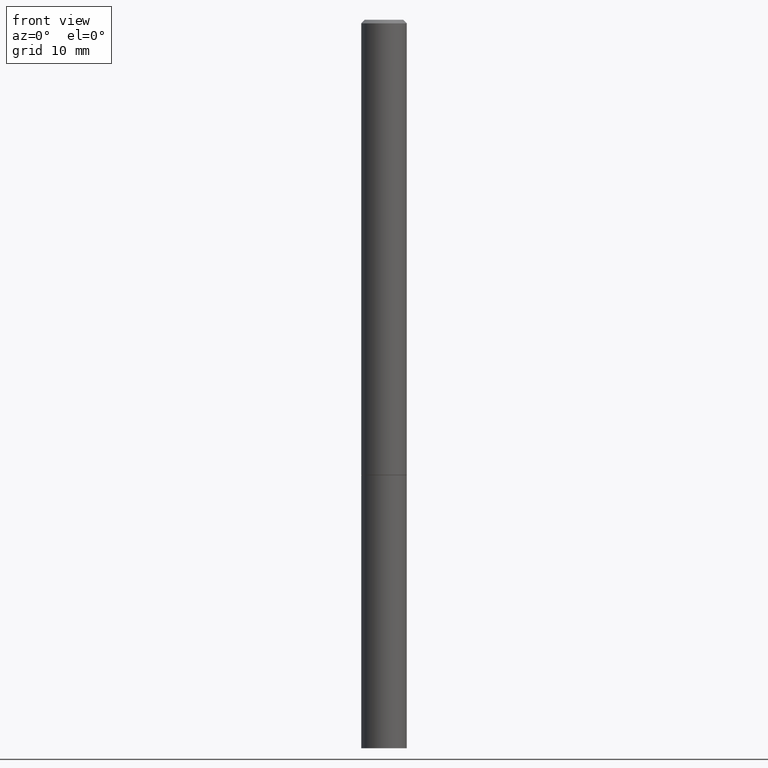
[diagram: clean part render]
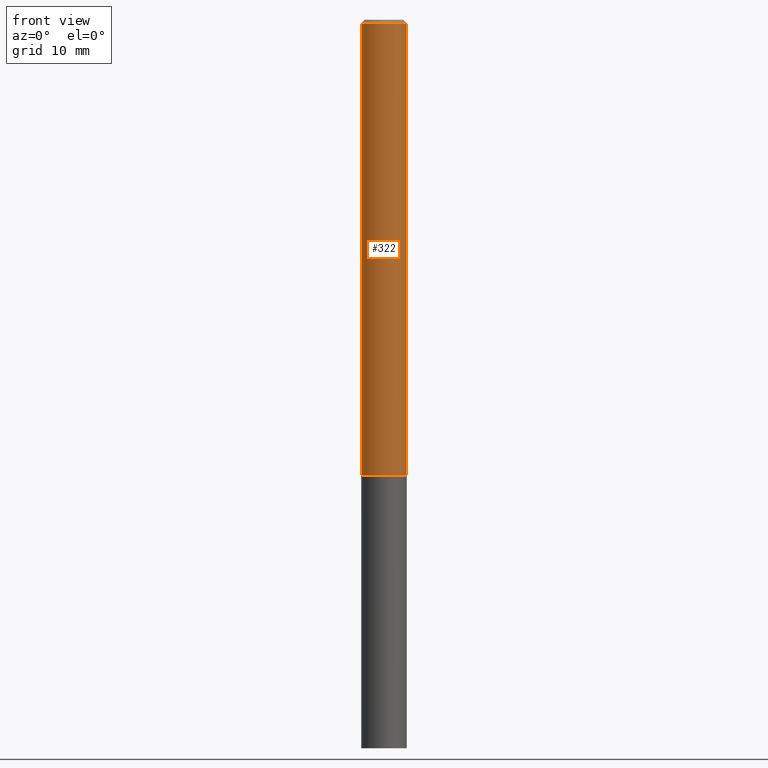
[diagram: same view with one face highlighted and labeled with its STEP entity id]
A machine part, front view. The second image highlights one B-rep face of the part: STEP entity #322.
In plain terms, the highlighted cylindrical surface (edge-blend (fillet) strip) has radius 3.175 mm, axis along (-0, 0, 1).
Its self-contained STEP definition (entity closure, byte-faithful):
#9 = VERTEX_POINT ( 'NONE', #143 ) ;
#25 = DIRECTION ( 'NONE',  ( 1.000000000000000000, -6.982962677686270655E-15, 0.000000000000000000 ) ) ;
#43 = AXIS2_PLACEMENT_3D ( 'NONE', #284, #163, #282 ) ;
#45 = VERTEX_POINT ( 'NONE', #240 ) ;
#49 = EDGE_LOOP ( 'NONE', ( #98, #335, #341, #299 ) ) ;
#54 = DIRECTION ( 'NONE',  ( -2.445468806185136877E-29, 3.491481338843145188E-15, 1.000000000000000000 ) ) ;
#59 = AXIS2_PLACEMENT_3D ( 'NONE', #301, #280, #262 ) ;
#60 = EDGE_CURVE ( 'NONE', #199, #9, #338, .T. ) ;
#70 = CARTESIAN_POINT ( 'NONE',  ( -0.1249999999999997086, 8.030407079339183643E-16, -0.02000000000000000736 ) ) ;
#87 = DIRECTION ( 'NONE',  ( -2.445468806185136597E-29, 3.491481338843145583E-15, 1.000000000000000000 ) ) ;
#94 = CARTESIAN_POINT ( 'NONE',  ( 0.1249999999999998612, -8.728703347107823527E-16, 6.095220969744912735E-30 ) ) ;
#98 = ORIENTED_EDGE ( 'NONE', *, *, #218, .F. ) ;
#122 = VECTOR ( 'NONE', #311, 39.37007874015748143 ) ;
#131 = EDGE_CURVE ( 'NONE', #9, #45, #332, .T. ) ;
#143 = CARTESIAN_POINT ( 'NONE',  ( 0.1250000000000000000, -9.598082200479808430E-15, -2.499000000000000998 ) ) ;
#163 = DIRECTION ( 'NONE',  ( -2.445468806185136597E-29, 3.491481338843145583E-15, 1.000000000000000000 ) ) ;
#166 = VECTOR ( 'NONE', #54, 39.37007874015748143 ) ;
#172 = EDGE_CURVE ( 'NONE', #378, #45, #360, .T. ) ;
#184 = FACE_OUTER_BOUND ( 'NONE', #49, .T. ) ;
#199 = VERTEX_POINT ( 'NONE', #257 ) ;
#211 = AXIS2_PLACEMENT_3D ( 'NONE', #271, #87, #25 ) ;
#214 = CARTESIAN_POINT ( 'NONE',  ( -0.1249999999999998612, 8.881784197001242463E-16, -6.148668862818625221E-30 ) ) ;
#218 = EDGE_CURVE ( 'NONE', #199, #378, #334, .T. ) ;
#240 = CARTESIAN_POINT ( 'NONE',  ( 0.1249999999999997086, -9.273918764983023769E-16, -0.02000000000000000736 ) ) ;
#257 = CARTESIAN_POINT ( 'NONE',  ( -0.1250000000000000000, -3.509342326572812651E-15, -2.499000000000000998 ) ) ;
#262 = DIRECTION ( 'NONE',  ( 1.000000000000000000, -6.982962677686266711E-15, 4.876176775795935793E-29 ) ) ;
#271 = CARTESIAN_POINT ( 'NONE',  ( 6.111226546656659252E-29, -8.725211865769023513E-15, -2.499000000000000998 ) ) ;
#280 = DIRECTION ( 'NONE',  ( -2.445468806185136597E-29, 3.491481338843145583E-15, 1.000000000000000000 ) ) ;
#282 = DIRECTION ( 'NONE',  ( 1.000000000000000000, -6.982962677686266711E-15, 0.000000000000000000 ) ) ;
#284 = CARTESIAN_POINT ( 'NONE',  ( 4.890937612370274910E-31, -6.982962677686295307E-17, -0.02000000000000000736 ) ) ;
#298 = CYLINDRICAL_SURFACE ( 'NONE', #59, 0.1249999999999998612 ) ;
#299 = ORIENTED_EDGE ( 'NONE', *, *, #172, .F. ) ;
#301 = CARTESIAN_POINT ( 'NONE',  ( 0.000000000000000000, 0.000000000000000000, 0.000000000000000000 ) ) ;
#311 = DIRECTION ( 'NONE',  ( -2.445468806185136877E-29, 3.491481338843145188E-15, 1.000000000000000000 ) ) ;
#322 = ADVANCED_FACE ( 'NONE', ( #184 ), #298, .T. ) ;
#332 = LINE ( 'NONE', #94, #122 ) ;
#334 = LINE ( 'NONE', #214, #166 ) ;
#335 = ORIENTED_EDGE ( 'NONE', *, *, #60, .T. ) ;
#338 = CIRCLE ( 'NONE', #211, 0.1250000000000000000 ) ;
#341 = ORIENTED_EDGE ( 'NONE', *, *, #131, .T. ) ;
#360 = CIRCLE ( 'NONE', #43, 0.1249999999999997086 ) ;
#378 = VERTEX_POINT ( 'NONE', #70 ) ;